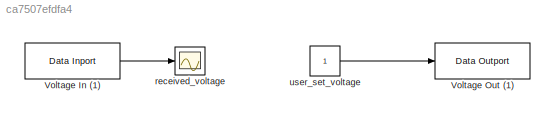
MODEL slx_ca7507efdfa4
KIND model
CONFIG AbsTol = auto
CONFIG EnableMultiTasking = off
CONFIG FixedStep = 0.001
CONFIG InitFcn = , if any(exist('rtifpga_mdlclblib', 'file') ~= 0), rtifpga_mdlclblib('Init', bdroot); end,\n, if any(exist('dsmpb_private', 'file') ~= 0), dsmpb_private('dsmpb_mdlclblib', 'Init', bdroot); end,\n
CONFIG MaxStep = auto
CONFIG MinStep = auto
CONFIG PostLoadFcn = if any(exist('dsrtsu_mdlpostloadfcn', 'file') ~= 0), dsrtsu_mdlpostloadfcn('Execute', bdroot); end
CONFIG RelTol = 1e-3
CONFIG SampleTimeConstraint = Unconstrained
CONFIG SolverName = FixedStepAuto
CONFIG StartTime = 0.0
CONFIG StopTime = Inf
BLOCK [Reference] Voltage In (1)  REF=dsmpblib/Data Inport
  Diagnostics = AllowInheritedTsInSrc
  Priority = 10000
  SourceBlock = dsmpblib/Data Inport
  SourceProductName = dSPACE Model Interface Package for Simulink (MIPS)
  SourceType = DataInportBlock
  UserDataPersistent = on
BLOCK [Reference] Voltage Out (1)  REF=dsmpblib/Data Outport
  Diagnostics = AllowInheritedTsInSrc
  Priority = -10000
  SourceBlock = dsmpblib/Data Outport
  SourceProductName = dSPACE Model Interface Package for Simulink (MIPS)
  SourceType = DataOutportBlock
  UserDataPersistent = on
BLOCK [Scope] received_voltage
  Floating = off
  NumInputPorts = 1
  ScopeSpecificationString = Simulink.scopes.TimeScopeBlockCfg('CurrentConfiguration', extmgr.ConfigurationSet(extmgr.Configuration('Core','General UI',true),extmgr.Configuration('Core','Source UI',true),extmgr.Configuration('Sources','WiredSimulink',true),extmgr.Configuration('Visuals','Time Domain',true),extmgr.Configuration('Tools','Plot Navigation',true),extmgr.Configuration('Tools','Measurements',true)),'Version','2023b'...<+1ch>
BLOCK [Constant] user_set_voltage
LINE Voltage In (1):1 -> received_voltage:1
LINE user_set_voltage:1 -> Voltage Out (1):1
